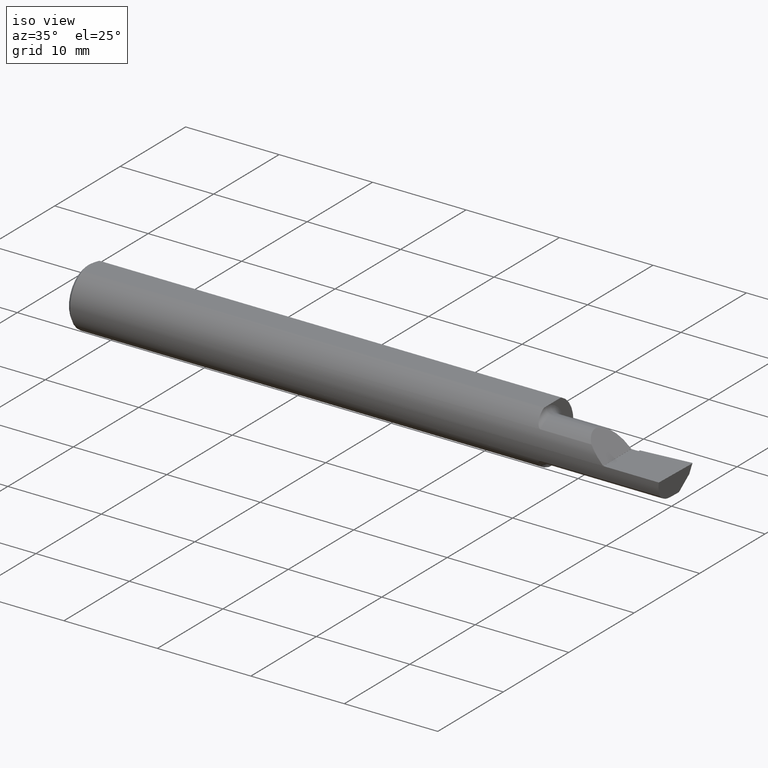
[diagram: clean part render]
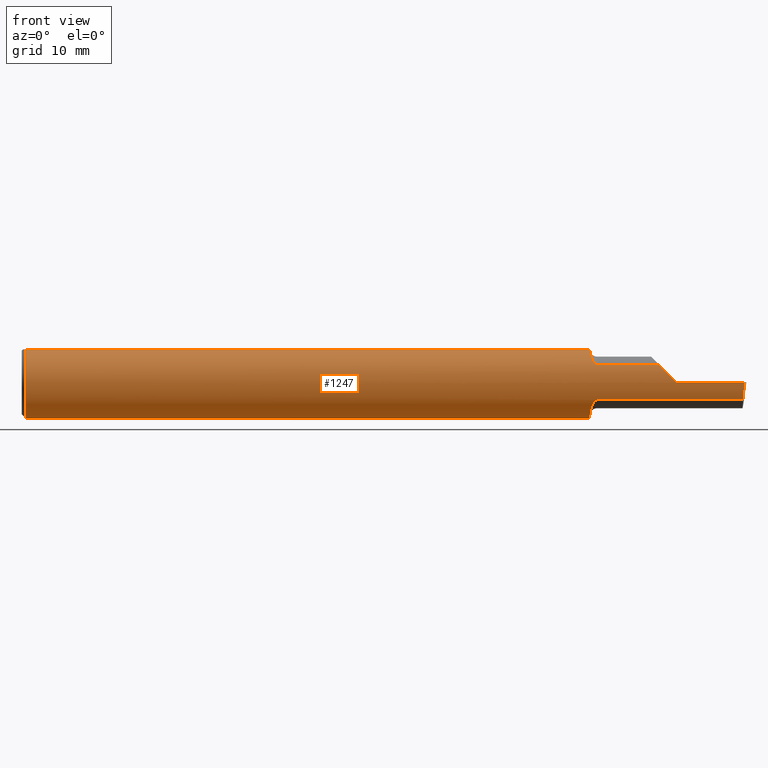
[diagram: tour spotlight — one face highlighted and labeled with its STEP entity id]
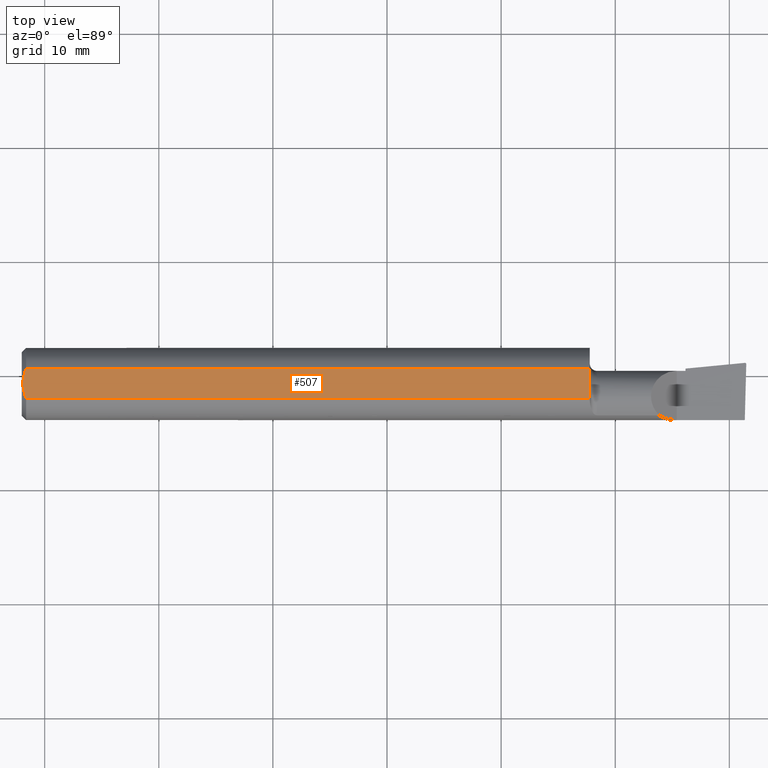
[diagram: tour spotlight — one face highlighted and labeled with its STEP entity id]
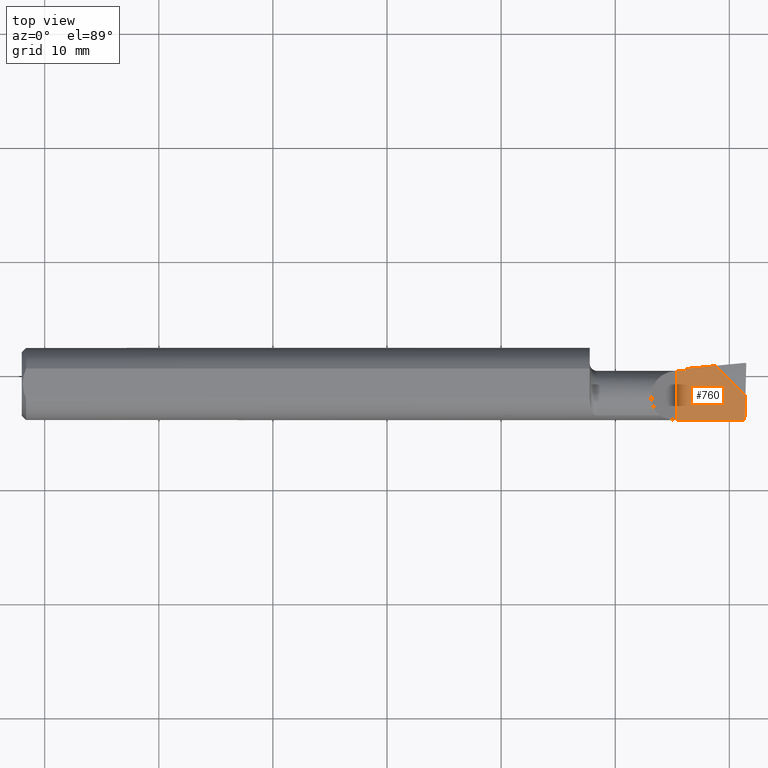
[diagram: tour spotlight — one face highlighted and labeled with its STEP entity id]
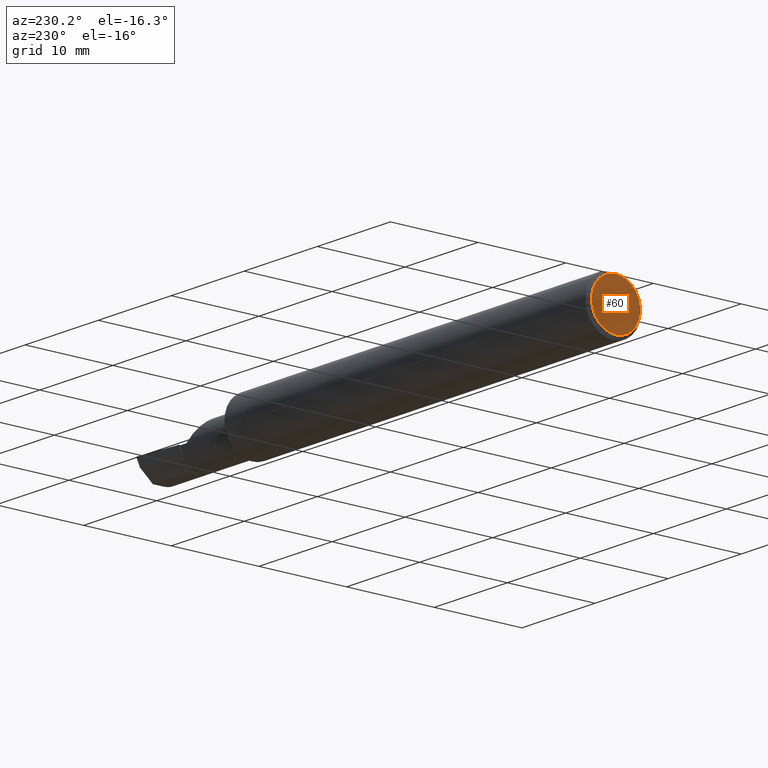
[diagram: tour spotlight — one face highlighted and labeled with its STEP entity id]
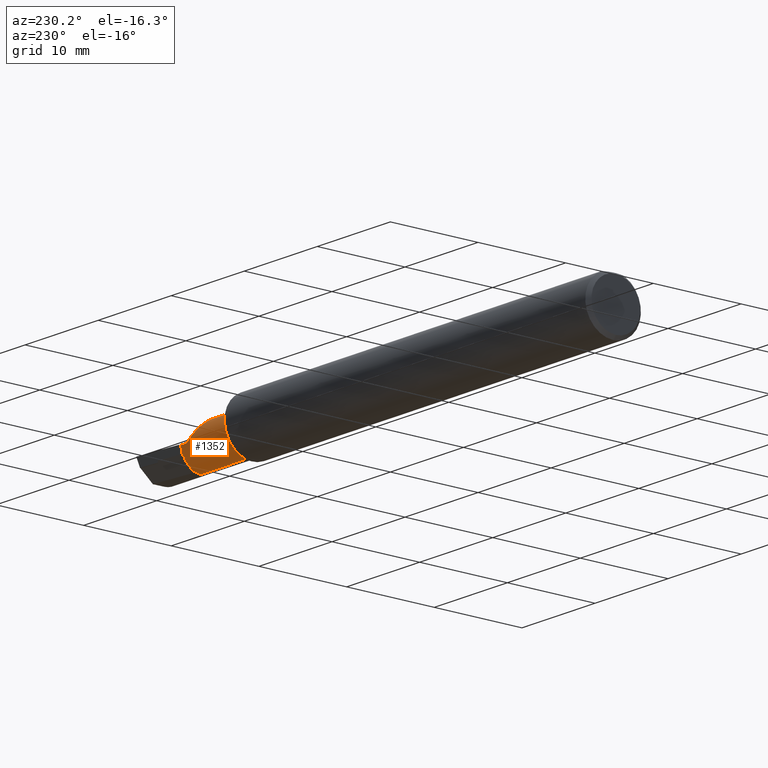
[diagram: tour spotlight — one face highlighted and labeled with its STEP entity id]
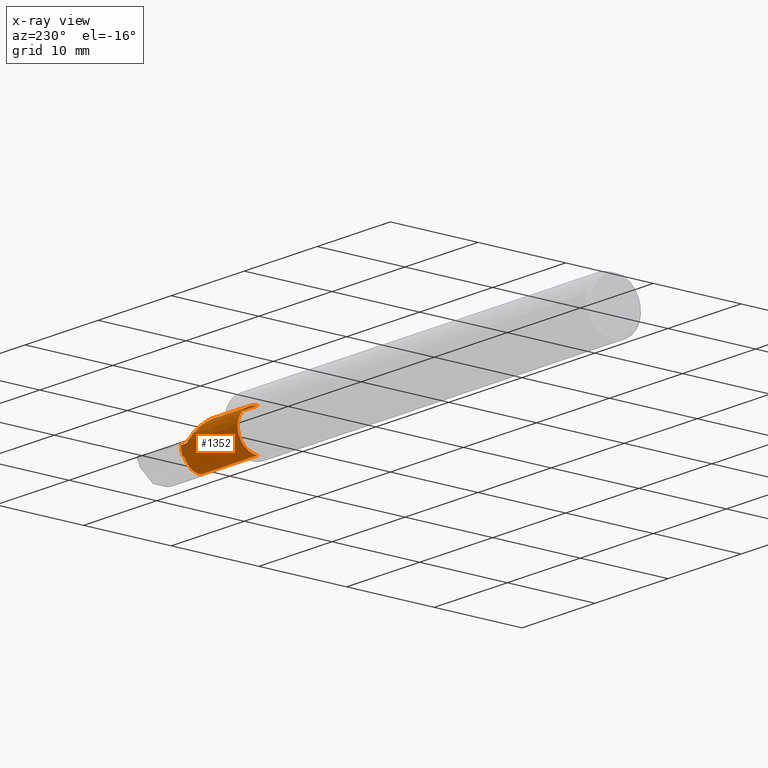
[diagram: x-ray of the same camera — body ghosted, this tour face saturated]
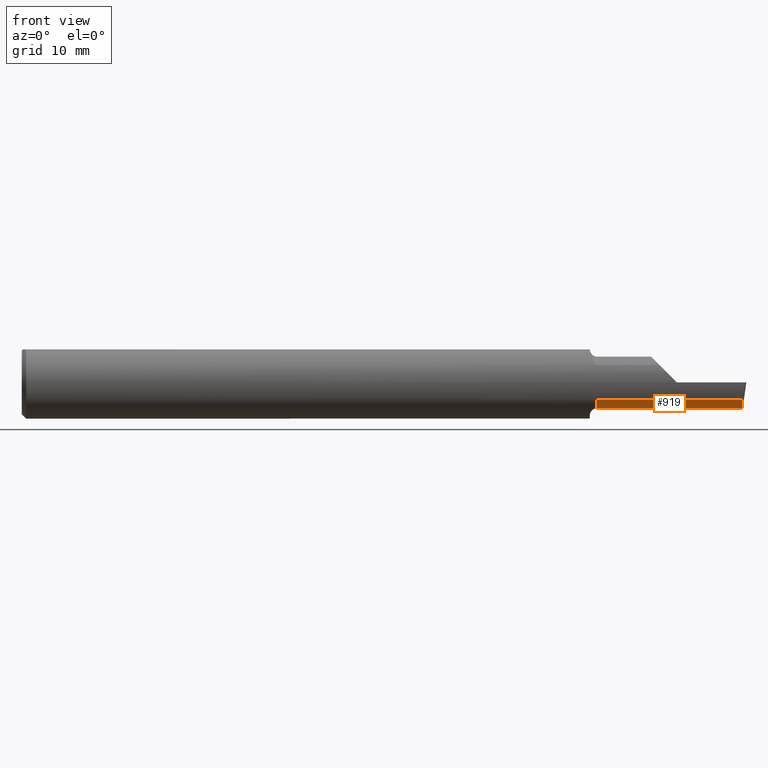
[diagram: tour spotlight — one face highlighted and labeled with its STEP entity id]
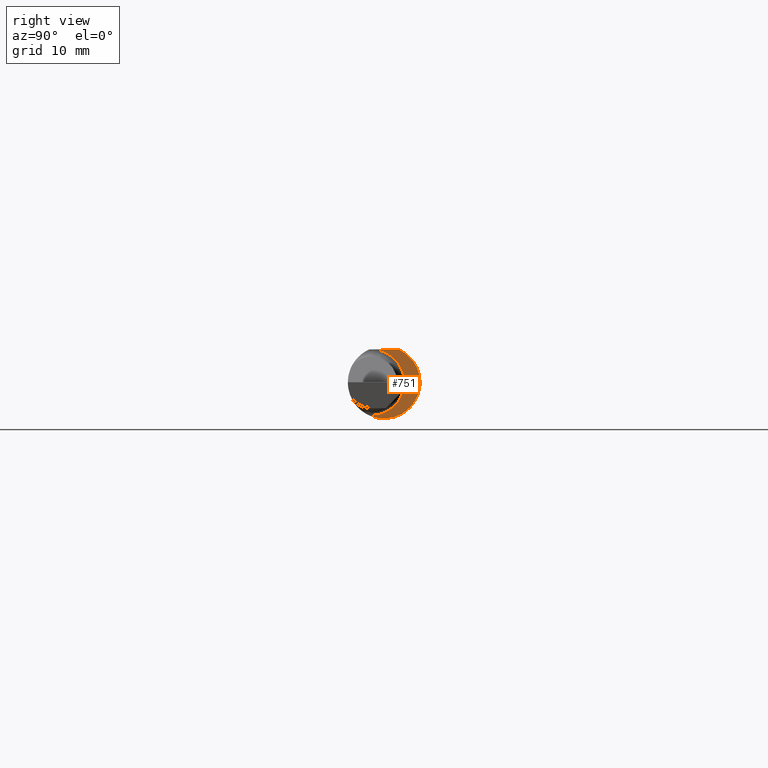
[diagram: tour spotlight — one face highlighted and labeled with its STEP entity id]
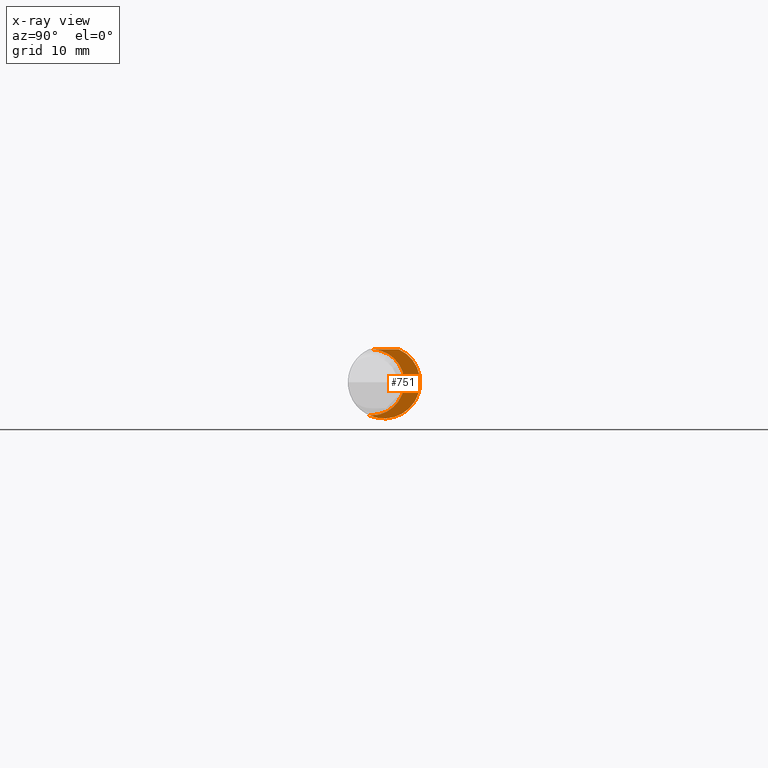
[diagram: x-ray of the same camera — body ghosted, this tour face saturated]
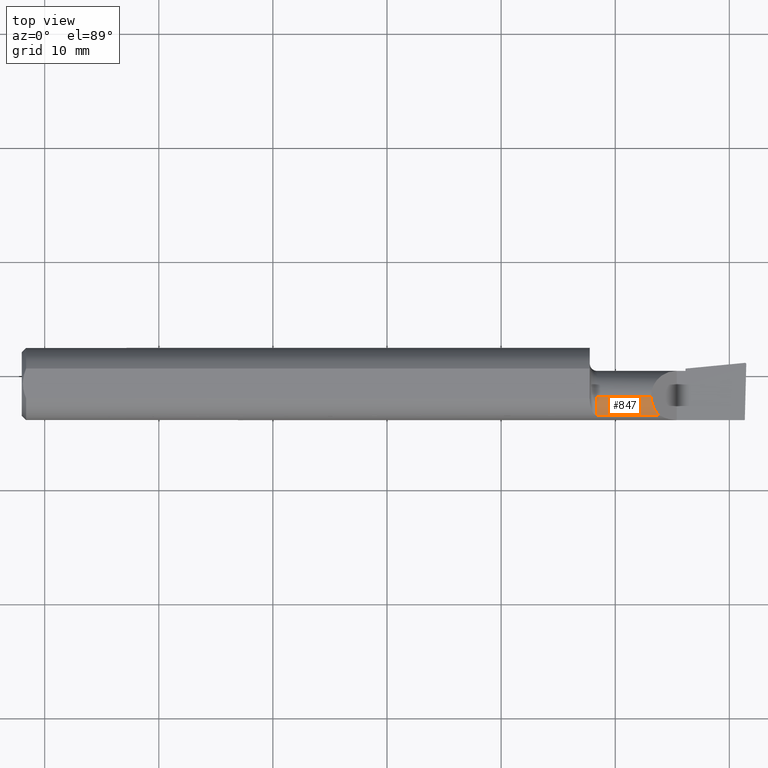
[diagram: tour spotlight — one face highlighted and labeled with its STEP entity id]
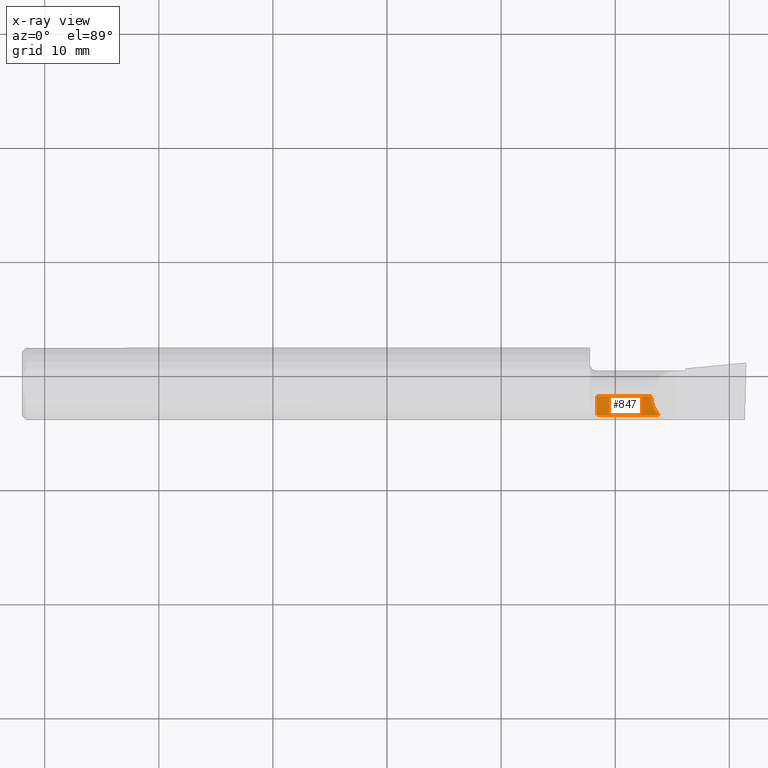
[diagram: x-ray of the same camera — body ghosted, this tour face saturated]
A machine part: a face-by-face anatomy tour. The part has 39 B-rep faces; the first image is the clean iso view, then the 8 largest visible faces are spotlighted one at a time (largest first), each with its STEP entity span.

Face 1 — front view, entity #1247. In plain terms, the highlighted cylindrical surface (edge-blend (fillet) strip) has radius 3.1712 mm, axis along (-1, -0, -0).
Definition (entity closure, byte-faithful):
#11 = CARTESIAN_POINT ( 'NONE',  ( 2.489794518800235057, -0.1195698034294429418, -0.04170749830123405416 ) ) ;
#13 = CIRCLE ( 'NONE', #794, 0.1248500000000000026 ) ;
#16 = CARTESIAN_POINT ( 'NONE',  ( 2.125000000000000000, -0.1093425883694413014, -0.06026376082415466767 ) ) ;
#20 = FACE_OUTER_BOUND ( 'NONE', #725, .T. ) ;
#21 = VECTOR ( 'NONE', #758, 39.37007874015748143 ) ;
#28 = DIRECTION ( 'NONE',  ( 1.000000000000000000, 0.000000000000000000, 0.000000000000000000 ) ) ;
#32 = ORIENTED_EDGE ( 'NONE', *, *, #945, .F. ) ;
#41 = CARTESIAN_POINT ( 'NONE',  ( 1.960000000000000187, 0.05124158467494929065, 0.1138500000000000068 ) ) ;
#49 = CARTESIAN_POINT ( 'NONE',  ( 1.968371954461044515, -0.09675137270842945614, -0.07920056856679651147 ) ) ;
#57 = CARTESIAN_POINT ( 'NONE',  ( 1.977410496273542151, -0.1069869057687729830, -0.06437073033037428449 ) ) ;
#62 = AXIS2_PLACEMENT_3D ( 'NONE', #391, #1325, #132 ) ;
#65 = DIRECTION ( 'NONE',  ( 1.000000000000000000, -0.000000000000000000, -0.000000000000000000 ) ) ;
#102 = VECTOR ( 'NONE', #1413, 39.37007874015748143 ) ;
#115 = CARTESIAN_POINT ( 'NONE',  ( 0.01499999999999915637, 0.000000000000000000, -0.1248500000000000026 ) ) ;
#132 = DIRECTION ( 'NONE',  ( 0.000000000000000000, 0.000000000000000000, -1.000000000000000000 ) ) ;
#148 = ORIENTED_EDGE ( 'NONE', *, *, #288, .F. ) ;
#149 = DIRECTION ( 'NONE',  ( 0.000000000000000000, 0.000000000000000000, 1.000000000000000000 ) ) ;
#158 = CARTESIAN_POINT ( 'NONE',  ( 1.960000000000000409, -0.05816623466208104692, -0.1107165568113169657 ) ) ;
#171 =( BOUNDED_CURVE ( )  B_SPLINE_CURVE ( 3, ( #892, #523, #314, #1353 ),
 .UNSPECIFIED., .F., .F. ) 
 B_SPLINE_CURVE_WITH_KNOTS ( ( 4, 4 ),
 ( 4.715192348093415475, 5.216111826723994760 ),
 .UNSPECIFIED. ) 
 CURVE ( )  GEOMETRIC_REPRESENTATION_ITEM ( )  RATIONAL_B_SPLINE_CURVE ( ( 1.000000000000000000, 0.9791990519953637229, 0.9791990519953637229, 1.000000000000000000 ) ) 
 REPRESENTATION_ITEM ( '' )  );
#181 = CARTESIAN_POINT ( 'NONE',  ( 2.200086239175845559, -0.1093425883694413292, 0.06026376082415463298 ) ) ;
#183 = CARTESIAN_POINT ( 'NONE',  ( 1.972660015980653769, -0.1027612295985233792, -0.07098704890307021287 ) ) ;
#204 = CARTESIAN_POINT ( 'NONE',  ( 1.961513270166814538, -0.07700069323836869484, 0.09928727876353367343 ) ) ;
#206 = CARTESIAN_POINT ( 'NONE',  ( 1.985000000000000098, -0.1093425883694413014, 0.06026376082415468155 ) ) ;
#209 = ORIENTED_EDGE ( 'NONE', *, *, #483, .T. ) ;
#256 = DIRECTION ( 'NONE',  ( -1.000000000000000000, -0.000000000000000000, -0.000000000000000000 ) ) ;
#263 = VERTEX_POINT ( 'NONE', #967 ) ;
#267 = EDGE_CURVE ( 'NONE', #674, #1455, #573, .T. ) ;
#288 = EDGE_CURVE ( 'NONE', #666, #441, #375, .T. ) ;
#290 = CARTESIAN_POINT ( 'NONE',  ( 2.500000000000000000, -0.05124158467494929065, 0.1138500000000000068 ) ) ;
#314 = CARTESIAN_POINT ( 'NONE',  ( 2.218537028253239285, -0.1195116721323033065, 0.04181297174676079642 ) ) ;
#318 = VERTEX_POINT ( 'NONE', #841 ) ;
#335 = VECTOR ( 'NONE', #848, 39.37007874015748143 ) ;
#349 = B_SPLINE_CURVE_WITH_KNOTS ( 'NONE', 3,
 ( #997, #158, #622, #402, #521, #1345, #49, #183, #531, #57, #852, #868, #418, #759 ),
 .UNSPECIFIED., .F., .F.,
 ( 4, 2, 2, 2, 2, 2, 4 ),
 ( 0.000000000000000000, 0.0005517145261831978400, 0.001103429052366395680, 0.001655143578549593628, 0.001931000841641192494, 0.002068929473186997565, 0.002206858104732802636 ),
 .UNSPECIFIED. ) ;
#357 = CARTESIAN_POINT ( 'NONE',  ( 1.972661867212402553, -0.1027603103061494882, 0.07098658663575843630 ) ) ;
#365 = VERTEX_POINT ( 'NONE', #753 ) ;
#369 = CIRCLE ( 'NONE', #1228, 0.1248500000000000026 ) ;
#372 = EDGE_CURVE ( 'NONE', #896, #1464, #171, .T. ) ;
#375 = LINE ( 'NONE', #16, #335 ) ;
#385 = ORIENTED_EDGE ( 'NONE', *, *, #372, .T. ) ;
#387 =( BOUNDED_CURVE ( )  B_SPLINE_CURVE ( 3, ( #1404, #11, #926, #709 ),
 .UNSPECIFIED., .F., .F. ) 
 B_SPLINE_CURVE_WITH_KNOTS ( ( 4, 4 ),
 ( 0.8554227114044700153, 1.359145557743775656 ),
 .UNSPECIFIED. ) 
 CURVE ( )  GEOMETRIC_REPRESENTATION_ITEM ( )  RATIONAL_B_SPLINE_CURVE ( ( 1.000000000000000000, 0.9789668132830409153, 0.9789668132830409153, 1.000000000000000000 ) ) 
 REPRESENTATION_ITEM ( '' )  );
#391 = CARTESIAN_POINT ( 'NONE',  ( 0.01499999999999915637, 0.000000000000000000, 0.000000000000000000 ) ) ;
#402 = CARTESIAN_POINT ( 'NONE',  ( 1.961938239095210701, -0.07637198179816161170, -0.09902894417965883711 ) ) ;
#403 = CARTESIAN_POINT ( 'NONE',  ( 2.260000000000000231, 0.000000000000000000, 0.000000000000000000 ) ) ;
#411 = DIRECTION ( 'NONE',  ( -1.000000000000000000, -0.000000000000000000, -0.000000000000000000 ) ) ;
#415 = ORIENTED_EDGE ( 'NONE', *, *, #820, .T. ) ;
#418 = CARTESIAN_POINT ( 'NONE',  ( 1.983134955130017252, -0.1093425883694447709, -0.06026376082415149660 ) ) ;
#431 = ORIENTED_EDGE ( 'NONE', *, *, #740, .F. ) ;
#441 = VERTEX_POINT ( 'NONE', #1226 ) ;
#456 = EDGE_CURVE ( 'NONE', #365, #896, #13, .T. ) ;
#466 = CARTESIAN_POINT ( 'NONE',  ( 1.960000000000000187, -0.05147485746864311623, 0.1137447209701746148 ) ) ;
#468 = CIRCLE ( 'NONE', #962, 0.1248500000000000026 ) ;
#483 = EDGE_CURVE ( 'NONE', #888, #263, #515, .T. ) ;
#486 = CARTESIAN_POINT ( 'NONE',  ( 2.125000000000000000, -0.1093425883694413014, 0.06026376082415468155 ) ) ;
#495 = ORIENTED_EDGE ( 'NONE', *, *, #1138, .T. ) ;
#505 = CARTESIAN_POINT ( 'NONE',  ( 0.01499999999999915637, 0.05124158467494929065, 0.1138500000000000068 ) ) ;
#510 = ORIENTED_EDGE ( 'NONE', *, *, #1215, .T. ) ;
#515 = LINE ( 'NONE', #290, #1066 ) ;
#521 = CARTESIAN_POINT ( 'NONE',  ( 1.963114859723588124, -0.08201250590250441785, -0.09440297353497605071 ) ) ;
#523 = CARTESIAN_POINT ( 'NONE',  ( 2.238932527582364607, -0.1247904493837344864, 0.02141747241763547471 ) ) ;
#529 = CARTESIAN_POINT ( 'NONE',  ( 1.983123630933981252, -0.1093425883694413153, 0.06026376082415468849 ) ) ;
#531 = CARTESIAN_POINT ( 'NONE',  ( 1.974283923201366919, -0.1046119976162258325, -0.06821230220210328099 ) ) ;
#544 = VERTEX_POINT ( 'NONE', #206 ) ;
#545 = CARTESIAN_POINT ( 'NONE',  ( 1.974262696791653671, -0.1045943557623048581, 0.06824036999240271073 ) ) ;
#551 = VERTEX_POINT ( 'NONE', #466 ) ;
#573 = CIRCLE ( 'NONE', #62, 0.1248500000000000026 ) ;
#598 = CARTESIAN_POINT ( 'NONE',  ( 2.500000000000000000, 0.05124158467494929065, 0.1138500000000000068 ) ) ;
#605 = CARTESIAN_POINT ( 'NONE',  ( 2.500000000000000000, 0.000000000000000000, 0.000000000000000000 ) ) ;
#622 = CARTESIAN_POINT ( 'NONE',  ( 1.960388743662555333, -0.06447589190997099484, -0.1071553580159688435 ) ) ;
#630 = DIRECTION ( 'NONE',  ( -1.000000000000000000, -0.000000000000000000, -0.000000000000000000 ) ) ;
#642 = DIRECTION ( 'NONE',  ( 0.000000000000000000, 0.000000000000000000, -1.000000000000000000 ) ) ;
#654 = DIRECTION ( 'NONE',  ( 0.000000000000000000, 0.000000000000000000, 1.000000000000000000 ) ) ;
#666 = VERTEX_POINT ( 'NONE', #691 ) ;
#667 = CARTESIAN_POINT ( 'NONE',  ( 1.968415758364236989, -0.09681973434311109961, 0.07911054902715594639 ) ) ;
#674 = VERTEX_POINT ( 'NONE', #115 ) ;
#691 = CARTESIAN_POINT ( 'NONE',  ( 2.487785916505024453, -0.1093425883694413014, -0.06026376082415470237 ) ) ;
#696 = LINE ( 'NONE', #598, #931 ) ;
#697 = DIRECTION ( 'NONE',  ( 0.000000000000000000, 0.000000000000000000, -1.000000000000000000 ) ) ;
#709 = CARTESIAN_POINT ( 'NONE',  ( 2.494776250492609648, -0.1248499999999999610, -1.707404996040164512E-17 ) ) ;
#720 = EDGE_CURVE ( 'NONE', #544, #1464, #1084, .T. ) ;
#725 = EDGE_LOOP ( 'NONE', ( #148, #495, #1301, #992, #385, #1108, #1154, #431, #209, #415, #755, #510, #32, #918 ) ) ;
#734 = AXIS2_PLACEMENT_3D ( 'NONE', #605, #256, #149 ) ;
#740 = EDGE_CURVE ( 'NONE', #888, #551, #369, .T. ) ;
#750 = CARTESIAN_POINT ( 'NONE',  ( 2.500000000000000000, -0.1248500000000000026, -3.414809992080329023E-17 ) ) ;
#753 = CARTESIAN_POINT ( 'NONE',  ( 2.260000000000000231, -0.1248500000000000026, -3.414809992080329023E-17 ) ) ;
#755 = ORIENTED_EDGE ( 'NONE', *, *, #267, .T. ) ;
#758 = DIRECTION ( 'NONE',  ( -1.000000000000000000, -0.000000000000000000, -0.000000000000000000 ) ) ;
#759 = CARTESIAN_POINT ( 'NONE',  ( 1.985000000000000098, -0.1093425883694413014, -0.06026376082415466767 ) ) ;
#794 = AXIS2_PLACEMENT_3D ( 'NONE', #403, #630, #654 ) ;
#819 = CARTESIAN_POINT ( 'NONE',  ( 1.959999999999999298, -0.06483863215424713611, 0.1076969818635402920 ) ) ;
#820 = EDGE_CURVE ( 'NONE', #263, #674, #975, .T. ) ;
#823 = CARTESIAN_POINT ( 'NONE',  ( 1.960000000000000187, 0.000000000000000000, 0.000000000000000000 ) ) ;
#835 = VERTEX_POINT ( 'NONE', #1120 ) ;
#841 = CARTESIAN_POINT ( 'NONE',  ( 1.960000000000000187, -0.05147485746864311623, -0.1137447209701746148 ) ) ;
#848 = DIRECTION ( 'NONE',  ( -1.000000000000000000, -0.000000000000000000, -0.000000000000000000 ) ) ;
#852 = CARTESIAN_POINT ( 'NONE',  ( 1.978582821436010386, -0.1077233320814301870, -0.06312374966870223925 ) ) ;
#860 = CARTESIAN_POINT ( 'NONE',  ( 1.960000000000000187, 0.000000000000000000, 0.000000000000000000 ) ) ;
#868 = CARTESIAN_POINT ( 'NONE',  ( 1.981405924813790520, -0.1089009754209322584, -0.06106964548229006085 ) ) ;
#876 = DIRECTION ( 'NONE',  ( 0.000000000000000000, 0.000000000000000000, -1.000000000000000000 ) ) ;
#881 = CARTESIAN_POINT ( 'NONE',  ( 1.977410591121773642, -0.1069877332768023742, 0.06436962514882095532 ) ) ;
#888 = VERTEX_POINT ( 'NONE', #980 ) ;
#892 = CARTESIAN_POINT ( 'NONE',  ( 2.260000000000000231, -0.1248495094103296982, 0.0003499999999999383053 ) ) ;
#894 = EDGE_CURVE ( 'NONE', #318, #441, #349, .T. ) ;
#896 = VERTEX_POINT ( 'NONE', #1225 ) ;
#918 = ORIENTED_EDGE ( 'NONE', *, *, #894, .T. ) ;
#926 = CARTESIAN_POINT ( 'NONE',  ( 2.492174692773018396, -0.1248499999999999888, -0.02118798732072202373 ) ) ;
#931 = VECTOR ( 'NONE', #1316, 39.37007874015748143 ) ;
#945 = EDGE_CURVE ( 'NONE', #318, #1435, #468, .T. ) ;
#962 = AXIS2_PLACEMENT_3D ( 'NONE', #860, #1330, #642 ) ;
#967 = CARTESIAN_POINT ( 'NONE',  ( 0.01499999999999915637, -0.05124158467494929065, 0.1138500000000000068 ) ) ;
#975 = CIRCLE ( 'NONE', #1178, 0.1248500000000000026 ) ;
#980 = CARTESIAN_POINT ( 'NONE',  ( 1.960000000000000187, -0.05124158467494929065, 0.1138500000000000068 ) ) ;
#992 = ORIENTED_EDGE ( 'NONE', *, *, #456, .T. ) ;
#995 = CARTESIAN_POINT ( 'NONE',  ( 1.978569800726603933, -0.1077176293511043076, 0.06313366163023678701 ) ) ;
#997 = CARTESIAN_POINT ( 'NONE',  ( 1.960000000000000187, -0.05147485746864311623, -0.1137447209701746148 ) ) ;
#1066 = VECTOR ( 'NONE', #411, 39.37007874015748143 ) ;
#1084 = LINE ( 'NONE', #486, #102 ) ;
#1098 = CARTESIAN_POINT ( 'NONE',  ( 0.01499999999999915637, 0.000000000000000000, 0.000000000000000000 ) ) ;
#1108 = ORIENTED_EDGE ( 'NONE', *, *, #720, .F. ) ;
#1110 = CARTESIAN_POINT ( 'NONE',  ( 1.985000000000000098, -0.1093425883694413014, 0.06026376082415468155 ) ) ;
#1120 = CARTESIAN_POINT ( 'NONE',  ( 2.494776250492609648, -0.1248499999999999610, -1.707404996040164512E-17 ) ) ;
#1126 = CARTESIAN_POINT ( 'NONE',  ( 1.960000000000000187, -0.05147485746864311623, 0.1137447209701746148 ) ) ;
#1138 = EDGE_CURVE ( 'NONE', #666, #835, #387, .T. ) ;
#1154 = ORIENTED_EDGE ( 'NONE', *, *, #1468, .T. ) ;
#1164 = B_SPLINE_CURVE_WITH_KNOTS ( 'NONE', 3,
 ( #1110, #529, #1457, #995, #881, #545, #357, #667, #1358, #204, #819, #1126 ),
 .UNSPECIFIED., .F., .F.,
 ( 4, 2, 2, 2, 2, 4 ),
 ( 0.000000000000000000, 0.0001399554655829060611, 0.0002799109311658121223, 0.0005598218623316239193, 0.001119643724663256078, 0.002239287449326519963 ),
 .UNSPECIFIED. ) ;
#1178 = AXIS2_PLACEMENT_3D ( 'NONE', #1098, #65, #876 ) ;
#1215 = EDGE_CURVE ( 'NONE', #1455, #1435, #696, .T. ) ;
#1225 = CARTESIAN_POINT ( 'NONE',  ( 2.260000000000000231, -0.1248495094103296982, 0.0003499999999999383053 ) ) ;
#1226 = CARTESIAN_POINT ( 'NONE',  ( 1.985000000000000098, -0.1093425883694413014, -0.06026376082415466767 ) ) ;
#1228 = AXIS2_PLACEMENT_3D ( 'NONE', #823, #28, #697 ) ;
#1247 = ADVANCED_FACE ( 'NONE', ( #20 ), #1308, .T. ) ;
#1301 = ORIENTED_EDGE ( 'NONE', *, *, #1448, .T. ) ;
#1308 = CYLINDRICAL_SURFACE ( 'NONE', #734, 0.1248500000000000026 ) ;
#1316 = DIRECTION ( 'NONE',  ( 1.000000000000000000, 0.000000000000000000, 0.000000000000000000 ) ) ;
#1325 = DIRECTION ( 'NONE',  ( 1.000000000000000000, -0.000000000000000000, -0.000000000000000000 ) ) ;
#1330 = DIRECTION ( 'NONE',  ( 1.000000000000000000, 0.000000000000000000, 0.000000000000000000 ) ) ;
#1336 = LINE ( 'NONE', #750, #21 ) ;
#1345 = CARTESIAN_POINT ( 'NONE',  ( 1.966361277442388644, -0.09219001326833793641, -0.08449244930902040374 ) ) ;
#1353 = CARTESIAN_POINT ( 'NONE',  ( 2.200086239175845559, -0.1093425883694413292, 0.06026376082415463298 ) ) ;
#1358 = CARTESIAN_POINT ( 'NONE',  ( 1.966359086621634500, -0.09217855052086350309, 0.08450162317811933665 ) ) ;
#1404 = CARTESIAN_POINT ( 'NONE',  ( 2.487785916505024453, -0.1093425883694413014, -0.06026376082415470237 ) ) ;
#1413 = DIRECTION ( 'NONE',  ( 1.000000000000000000, 0.000000000000000000, 0.000000000000000000 ) ) ;
#1435 = VERTEX_POINT ( 'NONE', #41 ) ;
#1448 = EDGE_CURVE ( 'NONE', #835, #365, #1336, .T. ) ;
#1455 = VERTEX_POINT ( 'NONE', #505 ) ;
#1457 = CARTESIAN_POINT ( 'NONE',  ( 1.981414604163055815, -0.1089048667610733045, 0.06106289298433214413 ) ) ;
#1464 = VERTEX_POINT ( 'NONE', #181 ) ;
#1468 = EDGE_CURVE ( 'NONE', #544, #551, #1164, .T. ) ;

Face 2 — top view, entity #507. In plain terms, the highlighted planar face has unit normal (0, 0, -1).
Definition (entity closure, byte-faithful):
#41 = CARTESIAN_POINT ( 'NONE',  ( 1.960000000000000187, 0.05124158467494929065, 0.1138500000000000068 ) ) ;
#93 = DIRECTION ( 'NONE',  ( -0.000000000000000000, 0.000000000000000000, -1.000000000000000000 ) ) ;
#108 = CARTESIAN_POINT ( 'NONE',  ( 0.003999999999999695639, -0.008848600531297712291, 0.1138500000000000068 ) ) ;
#120 = EDGE_CURVE ( 'NONE', #664, #263, #1184, .T. ) ;
#124 = CARTESIAN_POINT ( 'NONE',  ( 0.005080301127455556266, -0.01778481300359938122, 0.1138500000000000206 ) ) ;
#175 = EDGE_CURVE ( 'NONE', #1096, #479, #446, .T. ) ;
#227 = CARTESIAN_POINT ( 'NONE',  ( 0.003999999999982063043, -1.276289997341778245E-15, 0.1138500000000000068 ) ) ;
#263 = VERTEX_POINT ( 'NONE', #967 ) ;
#284 = CARTESIAN_POINT ( 'NONE',  ( 1.960000000000000187, 0.1000000000000000056, 0.1138500000000000068 ) ) ;
#290 = CARTESIAN_POINT ( 'NONE',  ( 2.500000000000000000, -0.05124158467494929065, 0.1138500000000000068 ) ) ;
#333 = AXIS2_PLACEMENT_3D ( 'NONE', #1045, #93, #801 ) ;
#340 = CARTESIAN_POINT ( 'NONE',  ( 0.003999999999982063043, -1.276289997341778245E-15, 0.1138500000000000068 ) ) ;
#399 = EDGE_CURVE ( 'NONE', #479, #888, #1114, .T. ) ;
#411 = DIRECTION ( 'NONE',  ( -1.000000000000000000, -0.000000000000000000, -0.000000000000000000 ) ) ;
#436 = PLANE ( 'NONE',  #333 ) ;
#446 = LINE ( 'NONE', #796, #988 ) ;
#473 = CARTESIAN_POINT ( 'NONE',  ( 0.01499999999999915637, 0.05124158467494929065, 0.1138500000000000068 ) ) ;
#479 = VERTEX_POINT ( 'NONE', #974 ) ;
#483 = EDGE_CURVE ( 'NONE', #888, #263, #515, .T. ) ;
#492 = CARTESIAN_POINT ( 'NONE',  ( 0.003999999999999199508, 0.008800694614867342336, 0.1138500000000000068 ) ) ;
#500 = CARTESIAN_POINT ( 'NONE',  ( 0.008866562462786909196, 0.03466860267591459488, 0.1138500000000000206 ) ) ;
#505 = CARTESIAN_POINT ( 'NONE',  ( 0.01499999999999915637, 0.05124158467494929065, 0.1138500000000000068 ) ) ;
#507 = ADVANCED_FACE ( 'NONE', ( #900 ), #436, .F. ) ;
#515 = LINE ( 'NONE', #290, #1066 ) ;
#534 = ORIENTED_EDGE ( 'NONE', *, *, #483, .F. ) ;
#588 = CARTESIAN_POINT ( 'NONE',  ( 0.01499999999999915637, -0.05124158467494929065, 0.1138500000000000068 ) ) ;
#598 = CARTESIAN_POINT ( 'NONE',  ( 2.500000000000000000, 0.05124158467494929065, 0.1138500000000000068 ) ) ;
#664 = VERTEX_POINT ( 'NONE', #227 ) ;
#696 = LINE ( 'NONE', #598, #931 ) ;
#732 = EDGE_CURVE ( 'NONE', #1455, #664, #1111, .T. ) ;
#796 = CARTESIAN_POINT ( 'NONE',  ( 1.960000000000000187, 0.1000000000000000056, 0.1138500000000000068 ) ) ;
#799 = CARTESIAN_POINT ( 'NONE',  ( 1.960000000000000187, -0.03800384741902852748, 0.1138500000000000068 ) ) ;
#801 = DIRECTION ( 'NONE',  ( -1.000000000000000000, 0.000000000000000000, 0.000000000000000000 ) ) ;
#806 = CARTESIAN_POINT ( 'NONE',  ( 1.960000000000000187, 0.1000000000000000056, 0.1138500000000000068 ) ) ;
#831 = CARTESIAN_POINT ( 'NONE',  ( 0.003999999999982063043, -1.276289997341778245E-15, 0.1138500000000000068 ) ) ;
#839 = CARTESIAN_POINT ( 'NONE',  ( 0.01167190377471788269, 0.04313268608482605931, 0.1138500000000000068 ) ) ;
#886 = DIRECTION ( 'NONE',  ( 0.000000000000000000, -1.000000000000000000, 0.000000000000000000 ) ) ;
#888 = VERTEX_POINT ( 'NONE', #980 ) ;
#900 = FACE_OUTER_BOUND ( 'NONE', #1147, .T. ) ;
#931 = VECTOR ( 'NONE', #1316, 39.37007874015748143 ) ;
#967 = CARTESIAN_POINT ( 'NONE',  ( 0.01499999999999915637, -0.05124158467494929065, 0.1138500000000000068 ) ) ;
#973 = EDGE_CURVE ( 'NONE', #1435, #1096, #1260, .T. ) ;
#974 = CARTESIAN_POINT ( 'NONE',  ( 1.960000000000000187, -0.04969615258097147270, 0.1138500000000000068 ) ) ;
#980 = CARTESIAN_POINT ( 'NONE',  ( 1.960000000000000187, -0.05124158467494929065, 0.1138500000000000068 ) ) ;
#988 = VECTOR ( 'NONE', #1270, 39.37007874015748143 ) ;
#1039 = VECTOR ( 'NONE', #886, 39.37007874015748143 ) ;
#1045 = CARTESIAN_POINT ( 'NONE',  ( 0.000000000000000000, 0.1000000000000000056, 0.1138500000000000068 ) ) ;
#1066 = VECTOR ( 'NONE', #411, 39.37007874015748143 ) ;
#1096 = VERTEX_POINT ( 'NONE', #799 ) ;
#1111 = B_SPLINE_CURVE_WITH_KNOTS ( 'NONE', 3,
 ( #473, #839, #500, #1179, #492, #831 ),
 .UNSPECIFIED., .F., .F.,
 ( 4, 2, 4 ),
 ( 0.001209797888329806285, 0.001876628042345594889, 0.002543458196361383494 ),
 .UNSPECIFIED. ) ;
#1114 = LINE ( 'NONE', #284, #1039 ) ;
#1141 = CARTESIAN_POINT ( 'NONE',  ( 0.01167347033176661768, -0.04313650299737419730, 0.1138500000000000068 ) ) ;
#1147 = EDGE_LOOP ( 'NONE', ( #1198, #1191, #1303, #1504, #534, #1494, #1403 ) ) ;
#1179 = CARTESIAN_POINT ( 'NONE',  ( 0.005030588787081020918, 0.01748826716933453429, 0.1138499999999999790 ) ) ;
#1184 = B_SPLINE_CURVE_WITH_KNOTS ( 'NONE', 3,
 ( #340, #108, #124, #1283, #1141, #588 ),
 .UNSPECIFIED., .F., .F.,
 ( 4, 2, 4 ),
 ( 0.002543458196361383494, 0.003213918189955208317, 0.003884378183549033140 ),
 .UNSPECIFIED. ) ;
#1191 = ORIENTED_EDGE ( 'NONE', *, *, #1215, .F. ) ;
#1198 = ORIENTED_EDGE ( 'NONE', *, *, #973, .F. ) ;
#1215 = EDGE_CURVE ( 'NONE', #1455, #1435, #696, .T. ) ;
#1251 = DIRECTION ( 'NONE',  ( 0.000000000000000000, -1.000000000000000000, 0.000000000000000000 ) ) ;
#1260 = LINE ( 'NONE', #806, #1323 ) ;
#1270 = DIRECTION ( 'NONE',  ( 0.000000000000000000, -1.000000000000000000, 0.000000000000000000 ) ) ;
#1283 = CARTESIAN_POINT ( 'NONE',  ( 0.008925039223039428135, -0.03485448893270377130, 0.1138499999999999790 ) ) ;
#1303 = ORIENTED_EDGE ( 'NONE', *, *, #732, .T. ) ;
#1316 = DIRECTION ( 'NONE',  ( 1.000000000000000000, 0.000000000000000000, 0.000000000000000000 ) ) ;
#1323 = VECTOR ( 'NONE', #1251, 39.37007874015748143 ) ;
#1403 = ORIENTED_EDGE ( 'NONE', *, *, #175, .F. ) ;
#1435 = VERTEX_POINT ( 'NONE', #41 ) ;
#1455 = VERTEX_POINT ( 'NONE', #505 ) ;
#1494 = ORIENTED_EDGE ( 'NONE', *, *, #399, .F. ) ;
#1504 = ORIENTED_EDGE ( 'NONE', *, *, #120, .T. ) ;

Face 3 — top view, entity #760. In plain terms, the highlighted planar face has unit normal (0, 0, -1).
Definition (entity closure, byte-faithful):
#5 = CARTESIAN_POINT ( 'NONE',  ( 2.260000000000000231, 0.1499999999999999667, -3.414809992080329023E-17 ) ) ;
#21 = VECTOR ( 'NONE', #758, 39.37007874015748143 ) ;
#96 = EDGE_LOOP ( 'NONE', ( #1026, #865, #830, #969, #286, #856, #465 ) ) ;
#119 = DIRECTION ( 'NONE',  ( 1.000000000000000000, 0.000000000000000000, 0.000000000000000000 ) ) ;
#131 = CARTESIAN_POINT ( 'NONE',  ( 2.395141843845649099, 0.06305330794814877071, 0.000000000000000000 ) ) ;
#135 = DIRECTION ( 'NONE',  ( -0.000000000000000000, 0.000000000000000000, -1.000000000000000000 ) ) ;
#201 = VERTEX_POINT ( 'NONE', #1085 ) ;
#225 = CARTESIAN_POINT ( 'NONE',  ( 2.500000000000000444, -0.04180484820620095771, 0.000000000000000000 ) ) ;
#235 = CARTESIAN_POINT ( 'NONE',  ( 1.960000000000000187, 0.04514999999999999569, -3.414809992080329023E-17 ) ) ;
#286 = ORIENTED_EDGE ( 'NONE', *, *, #1265, .F. ) ;
#316 = EDGE_CURVE ( 'NONE', #201, #572, #487, .T. ) ;
#319 = CARTESIAN_POINT ( 'NONE',  ( 2.269536573633624155, 0.05095889603083809255, -3.414809992080329023E-17 ) ) ;
#327 = DIRECTION ( 'NONE',  ( -0.9953961983671786307, -0.09584575252022480008, 0.000000000000000000 ) ) ;
#337 = LINE ( 'NONE', #225, #1004 ) ;
#365 = VERTEX_POINT ( 'NONE', #753 ) ;
#366 = DIRECTION ( 'NONE',  ( -0.000000000000000000, 1.000000000000000000, -0.000000000000000000 ) ) ;
#389 = DIRECTION ( 'NONE',  ( -1.000000000000000000, 0.000000000000000000, 0.000000000000000000 ) ) ;
#443 = VECTOR ( 'NONE', #366, 39.37007874015748143 ) ;
#465 = ORIENTED_EDGE ( 'NONE', *, *, #1448, .F. ) ;
#487 = LINE ( 'NONE', #1420, #1190 ) ;
#548 = CARTESIAN_POINT ( 'NONE',  ( 2.501859157066409711, 0.1436191330677595301, -3.414809992080329023E-17 ) ) ;
#567 = DIRECTION ( 'NONE',  ( 0.02637339639455550319, 0.9996521614854917415, 0.000000000000000000 ) ) ;
#572 = VERTEX_POINT ( 'NONE', #792 ) ;
#585 = LINE ( 'NONE', #5, #443 ) ;
#606 = PLANE ( 'NONE',  #1370 ) ;
#621 = EDGE_CURVE ( 'NONE', #835, #773, #662, .T. ) ;
#662 = LINE ( 'NONE', #548, #1188 ) ;
#669 = DIRECTION ( 'NONE',  ( 0.7071067811865526798, -0.7071067811865422437, -0.000000000000000000 ) ) ;
#688 = VERTEX_POINT ( 'NONE', #131 ) ;
#710 = EDGE_CURVE ( 'NONE', #365, #812, #585, .T. ) ;
#750 = CARTESIAN_POINT ( 'NONE',  ( 2.500000000000000000, -0.1248500000000000026, -3.414809992080329023E-17 ) ) ;
#753 = CARTESIAN_POINT ( 'NONE',  ( 2.260000000000000231, -0.1248500000000000026, -3.414809992080329023E-17 ) ) ;
#758 = DIRECTION ( 'NONE',  ( -1.000000000000000000, -0.000000000000000000, -0.000000000000000000 ) ) ;
#760 = ADVANCED_FACE ( 'NONE', ( #948 ), #606, .F. ) ;
#773 = VERTEX_POINT ( 'NONE', #1069 ) ;
#792 = CARTESIAN_POINT ( 'NONE',  ( 2.290000000000000036, 0.05292929987851683477, -3.414809992080329023E-17 ) ) ;
#810 = VECTOR ( 'NONE', #119, 39.37007874015748143 ) ;
#812 = VERTEX_POINT ( 'NONE', #1425 ) ;
#814 = LINE ( 'NONE', #235, #810 ) ;
#830 = ORIENTED_EDGE ( 'NONE', *, *, #955, .T. ) ;
#835 = VERTEX_POINT ( 'NONE', #1120 ) ;
#856 = ORIENTED_EDGE ( 'NONE', *, *, #710, .F. ) ;
#865 = ORIENTED_EDGE ( 'NONE', *, *, #1081, .F. ) ;
#948 = FACE_OUTER_BOUND ( 'NONE', #96, .T. ) ;
#955 = EDGE_CURVE ( 'NONE', #688, #572, #1113, .T. ) ;
#969 = ORIENTED_EDGE ( 'NONE', *, *, #316, .F. ) ;
#1004 = VECTOR ( 'NONE', #669, 39.37007874015748854 ) ;
#1026 = ORIENTED_EDGE ( 'NONE', *, *, #621, .T. ) ;
#1069 = CARTESIAN_POINT ( 'NONE',  ( 2.497045151793799711, -0.03884999999999986381, 0.000000000000000000 ) ) ;
#1081 = EDGE_CURVE ( 'NONE', #688, #773, #337, .T. ) ;
#1085 = CARTESIAN_POINT ( 'NONE',  ( 2.290000000000000036, 0.04514999999999999569, -3.414809992080329023E-17 ) ) ;
#1113 = LINE ( 'NONE', #319, #1176 ) ;
#1120 = CARTESIAN_POINT ( 'NONE',  ( 2.494776250492609648, -0.1248499999999999610, -1.707404996040164512E-17 ) ) ;
#1176 = VECTOR ( 'NONE', #327, 39.37007874015748854 ) ;
#1186 = CARTESIAN_POINT ( 'NONE',  ( 2.260000000000000231, 0.1499999999999999667, -3.414809992080329023E-17 ) ) ;
#1188 = VECTOR ( 'NONE', #567, 39.37007874015748143 ) ;
#1190 = VECTOR ( 'NONE', #1415, 39.37007874015748143 ) ;
#1265 = EDGE_CURVE ( 'NONE', #812, #201, #814, .T. ) ;
#1336 = LINE ( 'NONE', #750, #21 ) ;
#1370 = AXIS2_PLACEMENT_3D ( 'NONE', #1186, #135, #389 ) ;
#1415 = DIRECTION ( 'NONE',  ( 0.000000000000000000, 1.000000000000000000, 0.000000000000000000 ) ) ;
#1420 = CARTESIAN_POINT ( 'NONE',  ( 2.290000000000000036, 0.1499999999999999667, -3.414809992080329023E-17 ) ) ;
#1425 = CARTESIAN_POINT ( 'NONE',  ( 2.260000000000000231, 0.04514999999999997488, -3.414809992080329023E-17 ) ) ;
#1448 = EDGE_CURVE ( 'NONE', #835, #365, #1336, .T. ) ;

Face 4 — auxiliary view, entity #60. In plain terms, the highlighted planar face has unit normal (1, 0, 0).
Definition (entity closure, byte-faithful):
#46 = ORIENTED_EDGE ( 'NONE', *, *, #965, .T. ) ;
#60 = ADVANCED_FACE ( 'NONE', ( #1146 ), #1508, .F. ) ;
#178 = EDGE_LOOP ( 'NONE', ( #180, #46 ) ) ;
#180 = ORIENTED_EDGE ( 'NONE', *, *, #392, .T. ) ;
#239 = CARTESIAN_POINT ( 'NONE',  ( 0.000000000000000000, 1.437123018799421600E-17, 0.1098500000000004473 ) ) ;
#392 = EDGE_CURVE ( 'NONE', #1142, #1501, #454, .T. ) ;
#394 = AXIS2_PLACEMENT_3D ( 'NONE', #575, #1129, #1143 ) ;
#428 = CARTESIAN_POINT ( 'NONE',  ( 0.000000000000000000, 0.000000000000000000, 0.000000000000000000 ) ) ;
#454 = CIRCLE ( 'NONE', #647, 0.1098500000000004473 ) ;
#504 = AXIS2_PLACEMENT_3D ( 'NONE', #903, #922, #1047 ) ;
#575 = CARTESIAN_POINT ( 'NONE',  ( 0.000000000000000000, 0.000000000000000000, 0.000000000000000000 ) ) ;
#647 = AXIS2_PLACEMENT_3D ( 'NONE', #428, #1359, #998 ) ;
#776 = CARTESIAN_POINT ( 'NONE',  ( 0.000000000000000000, 0.000000000000000000, -0.1098500000000004473 ) ) ;
#903 = CARTESIAN_POINT ( 'NONE',  ( 0.000000000000000000, 0.000000000000000000, 0.000000000000000000 ) ) ;
#922 = DIRECTION ( 'NONE',  ( 1.000000000000000000, 0.000000000000000000, 0.000000000000000000 ) ) ;
#925 = CIRCLE ( 'NONE', #394, 0.1098500000000004473 ) ;
#965 = EDGE_CURVE ( 'NONE', #1501, #1142, #925, .T. ) ;
#998 = DIRECTION ( 'NONE',  ( 0.000000000000000000, 0.000000000000000000, -1.000000000000000000 ) ) ;
#1047 = DIRECTION ( 'NONE',  ( 0.000000000000000000, 0.000000000000000000, -1.000000000000000000 ) ) ;
#1129 = DIRECTION ( 'NONE',  ( -1.000000000000000000, -0.000000000000000000, -0.000000000000000000 ) ) ;
#1142 = VERTEX_POINT ( 'NONE', #776 ) ;
#1143 = DIRECTION ( 'NONE',  ( 0.000000000000000000, 0.000000000000000000, -1.000000000000000000 ) ) ;
#1146 = FACE_OUTER_BOUND ( 'NONE', #178, .T. ) ;
#1359 = DIRECTION ( 'NONE',  ( -1.000000000000000000, -0.000000000000000000, -0.000000000000000000 ) ) ;
#1501 = VERTEX_POINT ( 'NONE', #239 ) ;
#1508 = PLANE ( 'NONE',  #504 ) ;

Face 5 — auxiliary view, entity #1352. An x-ray twin of the same camera follows (body ghosted, this face saturated) — the face is partly hidden behind the body. In plain terms, the highlighted cylindrical surface (edge-blend (fillet) strip) has radius 2.2606 mm, axis along (-1, -0, -0).
Definition (entity closure, byte-faithful):
#2 = AXIS2_PLACEMENT_3D ( 'NONE', #1366, #1489, #449 ) ;
#19 = VERTEX_POINT ( 'NONE', #355 ) ;
#47 = ORIENTED_EDGE ( 'NONE', *, *, #249, .T. ) ;
#81 = CARTESIAN_POINT ( 'NONE',  ( 1.985000000000000098, -0.04080726561575169498, 0.08896101634190878293 ) ) ;
#84 = CARTESIAN_POINT ( 'NONE',  ( 2.289293480241941126, -0.001989077639623209118, -0.07854087849327556770 ) ) ;
#90 = CARTESIAN_POINT ( 'NONE',  ( 1.984999549995949852, -0.04232863280787584059, 0.08899999999999999578 ) ) ;
#95 = CARTESIAN_POINT ( 'NONE',  ( 2.290000000000000036, -0.001847796191672970972, -0.07846537373417498962 ) ) ;
#98 = CARTESIAN_POINT ( 'NONE',  ( 2.290000000000000036, -0.001847796191672970972, -0.07846537373417498962 ) ) ;
#119 = DIRECTION ( 'NONE',  ( 1.000000000000000000, 0.000000000000000000, 0.000000000000000000 ) ) ;
#125 = CARTESIAN_POINT ( 'NONE',  ( 2.288937985906247530, -0.002059794679488745426, -0.07857848776395173762 ) ) ;
#155 = VERTEX_POINT ( 'NONE', #95 ) ;
#163 = DIRECTION ( 'NONE',  ( -1.000000000000000000, -0.000000000000000000, -0.000000000000000000 ) ) ;
#164 = EDGE_CURVE ( 'NONE', #19, #1206, #558, .T. ) ;
#182 =( BOUNDED_CURVE ( )  B_SPLINE_CURVE ( 3, ( #1459, #1443, #653, #1337 ),
 .UNSPECIFIED., .F., .F. ) 
 B_SPLINE_CURVE_WITH_KNOTS ( ( 4, 4 ),
 ( 2.820608254191869335, 2.832531324869317135 ),
 .UNSPECIFIED. ) 
 CURVE ( )  GEOMETRIC_REPRESENTATION_ITEM ( )  RATIONAL_B_SPLINE_CURVE ( ( 1.000000000000000000, 0.9999881534005539141, 0.9999881534005539141, 1.000000000000000000 ) ) 
 REPRESENTATION_ITEM ( '' )  );
#201 = VERTEX_POINT ( 'NONE', #1085 ) ;
#213 = DIRECTION ( 'NONE',  ( -1.000000000000000000, -0.000000000000000000, -0.000000000000000000 ) ) ;
#216 = CIRCLE ( 'NONE', #409, 0.08899999999999999578 ) ;
#223 = VERTEX_POINT ( 'NONE', #474 ) ;
#230 = CARTESIAN_POINT ( 'NONE',  ( 1.985000000000000098, -0.03928589842362753548, 0.08888289473684209130 ) ) ;
#233 = VERTEX_POINT ( 'NONE', #1181 ) ;
#235 = CARTESIAN_POINT ( 'NONE',  ( 1.960000000000000187, 0.04514999999999999569, -3.414809992080329023E-17 ) ) ;
#249 = EDGE_CURVE ( 'NONE', #1206, #233, #1382, .T. ) ;
#272 = FACE_OUTER_BOUND ( 'NONE', #656, .T. ) ;
#283 = VECTOR ( 'NONE', #213, 39.37007874015748143 ) ;
#329 =( BOUNDED_CURVE ( )  B_SPLINE_CURVE ( 3, ( #98, #1389, #84, #1029 ),
 .UNSPECIFIED., .F., .F. ) 
 B_SPLINE_CURVE_WITH_KNOTS ( ( 4, 4 ),
 ( 3.450653982310268653, 3.453353844081592072 ),
 .UNSPECIFIED. ) 
 CURVE ( )  GEOMETRIC_REPRESENTATION_ITEM ( )  RATIONAL_B_SPLINE_CURVE ( ( 1.000000000000000000, 0.9999993925622936430, 0.9999993925622936430, 1.000000000000000000 ) ) 
 REPRESENTATION_ITEM ( '' )  );
#355 = CARTESIAN_POINT ( 'NONE',  ( 2.290000000000000036, -0.04384999999999998621, -0.08899999999999999578 ) ) ;
#383 = DIRECTION ( 'NONE',  ( 1.000000000000000000, 0.000000000000000000, 0.000000000000000000 ) ) ;
#395 = CARTESIAN_POINT ( 'NONE',  ( 2.260000000000000231, -0.04385000000000000009, 0.000000000000000000 ) ) ;
#409 = AXIS2_PLACEMENT_3D ( 'NONE', #395, #859, #1223 ) ;
#422 = ORIENTED_EDGE ( 'NONE', *, *, #601, .F. ) ;
#438 =( BOUNDED_CURVE ( )  B_SPLINE_CURVE ( 3, ( #897, #1402, #693, #651 ),
 .UNSPECIFIED., .F., .F. ) 
 B_SPLINE_CURVE_WITH_KNOTS ( ( 4, 4 ),
 ( 4.716321574790802273, 6.283185307179586232 ),
 .UNSPECIFIED. ) 
 CURVE ( )  GEOMETRIC_REPRESENTATION_ITEM ( )  RATIONAL_B_SPLINE_CURVE ( ( 1.000000000000000000, 0.8056638636166326695, 0.8056638636166326695, 1.000000000000000000 ) ) 
 REPRESENTATION_ITEM ( '' )  );
#449 = DIRECTION ( 'NONE',  ( 0.000000000000000000, 0.000000000000000000, 1.000000000000000000 ) ) ;
#463 = CARTESIAN_POINT ( 'NONE',  ( 1.985000000000000098, -0.04384999999999998621, -0.08899999999999999578 ) ) ;
#470 = ORIENTED_EDGE ( 'NONE', *, *, #1478, .F. ) ;
#471 = B_SPLINE_CURVE_WITH_KNOTS ( 'NONE', 3,
 ( #230, #81, #90, #1134 ),
 .UNSPECIFIED., .F., .F.,
 ( 4, 4 ),
 ( 0.000000000000000000, 0.0001159281800398605754 ),
 .UNSPECIFIED. ) ;
#474 = CARTESIAN_POINT ( 'NONE',  ( 1.984999549995949852, -0.04385000000000000009, 0.08899999999999999578 ) ) ;
#513 = CARTESIAN_POINT ( 'NONE',  ( 2.290000000000000036, -0.04385000000000000009, 0.000000000000000000 ) ) ;
#520 = CARTESIAN_POINT ( 'NONE',  ( 2.290000000000000036, 0.03585161589387594189, -0.03960621698553223186 ) ) ;
#547 = EDGE_CURVE ( 'NONE', #701, #223, #1506, .T. ) ;
#558 = LINE ( 'NONE', #1385, #1314 ) ;
#559 = ORIENTED_EDGE ( 'NONE', *, *, #1265, .T. ) ;
#601 = EDGE_CURVE ( 'NONE', #155, #1133, #329, .T. ) ;
#634 = CYLINDRICAL_SURFACE ( 'NONE', #724, 0.08899999999999999578 ) ;
#651 = CARTESIAN_POINT ( 'NONE',  ( 2.171349999999999891, -0.04385000000000000009, 0.08899999999999999578 ) ) ;
#653 = CARTESIAN_POINT ( 'NONE',  ( 2.288443222880010008, 0.03600902606772962006, -0.03928945244276216275 ) ) ;
#656 = EDGE_LOOP ( 'NONE', ( #1445, #1213, #47, #1335, #1257, #470, #1409, #559, #1001, #976, #1089, #422 ) ) ;
#693 = CARTESIAN_POINT ( 'NONE',  ( 2.171350000000000335, 0.008122574649203021663, 0.08900000000000000966 ) ) ;
#701 = VERTEX_POINT ( 'NONE', #1053 ) ;
#717 = AXIS2_PLACEMENT_3D ( 'NONE', #1210, #383, #949 ) ;
#724 = AXIS2_PLACEMENT_3D ( 'NONE', #1450, #1349, #742 ) ;
#742 = DIRECTION ( 'NONE',  ( 0.000000000000000000, 0.000000000000000000, 1.000000000000000000 ) ) ;
#780 = VERTEX_POINT ( 'NONE', #1061 ) ;
#810 = VECTOR ( 'NONE', #119, 39.37007874015748143 ) ;
#812 = VERTEX_POINT ( 'NONE', #1425 ) ;
#814 = LINE ( 'NONE', #235, #810 ) ;
#837 = EDGE_CURVE ( 'NONE', #1378, #1416, #182, .T. ) ;
#859 = DIRECTION ( 'NONE',  ( -1.000000000000000000, -0.000000000000000000, -0.000000000000000000 ) ) ;
#872 = AXIS2_PLACEMENT_3D ( 'NONE', #513, #163, #1090 ) ;
#874 = CARTESIAN_POINT ( 'NONE',  ( 2.285242608473425641, 0.03631816732134428988, -0.03865313633247555863 ) ) ;
#882 = CIRCLE ( 'NONE', #2, 0.08899999999999999578 ) ;
#897 = CARTESIAN_POINT ( 'NONE',  ( 2.260000000000000231, 0.04514931179509204529, 0.0003499999999999638925 ) ) ;
#949 = DIRECTION ( 'NONE',  ( 0.000000000000000000, 0.000000000000000000, -1.000000000000000000 ) ) ;
#976 = ORIENTED_EDGE ( 'NONE', *, *, #837, .F. ) ;
#1001 = ORIENTED_EDGE ( 'NONE', *, *, #1432, .T. ) ;
#1019 = CARTESIAN_POINT ( 'NONE',  ( 2.285242608473425641, 0.03631816732134428988, -0.03865313633247555863 ) ) ;
#1029 = CARTESIAN_POINT ( 'NONE',  ( 2.288937985906247530, -0.002059794679488745426, -0.07857848776395173762 ) ) ;
#1048 = CARTESIAN_POINT ( 'NONE',  ( 2.287719783628060277, 0.01479621339370657158, -0.06961399813952577620 ) ) ;
#1053 = CARTESIAN_POINT ( 'NONE',  ( 2.171349999999999891, -0.04385000000000000009, 0.08899999999999999578 ) ) ;
#1059 =( BOUNDED_CURVE ( )  B_SPLINE_CURVE ( 3, ( #125, #1048, #1293, #1019 ),
 .UNSPECIFIED., .F., .F. ) 
 B_SPLINE_CURVE_WITH_KNOTS ( ( 4, 4 ),
 ( 4.414898696640120690, 5.047644286529844315 ),
 .UNSPECIFIED. ) 
 CURVE ( )  GEOMETRIC_REPRESENTATION_ITEM ( )  RATIONAL_B_SPLINE_CURVE ( ( 1.000000000000000000, 0.9669134457620006673, 0.9669134457620006673, 1.000000000000000000 ) ) 
 REPRESENTATION_ITEM ( '' )  );
#1061 = CARTESIAN_POINT ( 'NONE',  ( 2.260000000000000231, 0.04514931179509204529, 0.0003499999999999638925 ) ) ;
#1073 = EDGE_CURVE ( 'NONE', #155, #19, #882, .T. ) ;
#1085 = CARTESIAN_POINT ( 'NONE',  ( 2.290000000000000036, 0.04514999999999999569, -3.414809992080329023E-17 ) ) ;
#1089 = ORIENTED_EDGE ( 'NONE', *, *, #1502, .F. ) ;
#1090 = DIRECTION ( 'NONE',  ( 0.000000000000000000, 0.000000000000000000, 1.000000000000000000 ) ) ;
#1133 = VERTEX_POINT ( 'NONE', #1374 ) ;
#1134 = CARTESIAN_POINT ( 'NONE',  ( 1.984999549995949852, -0.04385000000000000009, 0.08899999999999999578 ) ) ;
#1181 = CARTESIAN_POINT ( 'NONE',  ( 1.985000000000000098, -0.03928589842362753548, 0.08888289473684209130 ) ) ;
#1206 = VERTEX_POINT ( 'NONE', #463 ) ;
#1210 = CARTESIAN_POINT ( 'NONE',  ( 1.985000000000000098, -0.04385000000000000009, 0.000000000000000000 ) ) ;
#1213 = ORIENTED_EDGE ( 'NONE', *, *, #164, .T. ) ;
#1223 = DIRECTION ( 'NONE',  ( 0.000000000000000000, 0.000000000000000000, 1.000000000000000000 ) ) ;
#1257 = ORIENTED_EDGE ( 'NONE', *, *, #547, .F. ) ;
#1265 = EDGE_CURVE ( 'NONE', #812, #201, #814, .T. ) ;
#1293 = CARTESIAN_POINT ( 'NONE',  ( 2.286445840771017313, 0.02802661582150205513, -0.05585014933228257122 ) ) ;
#1314 = VECTOR ( 'NONE', #1486, 39.37007874015748143 ) ;
#1335 = ORIENTED_EDGE ( 'NONE', *, *, #1495, .T. ) ;
#1337 = CARTESIAN_POINT ( 'NONE',  ( 2.290000000000000036, 0.03585161589387594189, -0.03960621698553223186 ) ) ;
#1349 = DIRECTION ( 'NONE',  ( -1.000000000000000000, -0.000000000000000000, -0.000000000000000000 ) ) ;
#1352 = ADVANCED_FACE ( 'NONE', ( #272 ), #634, .T. ) ;
#1366 = CARTESIAN_POINT ( 'NONE',  ( 2.290000000000000036, -0.04385000000000000009, 0.000000000000000000 ) ) ;
#1374 = CARTESIAN_POINT ( 'NONE',  ( 2.288937985906247530, -0.002059794679488745426, -0.07857848776395173762 ) ) ;
#1378 = VERTEX_POINT ( 'NONE', #874 ) ;
#1382 = CIRCLE ( 'NONE', #717, 0.08899999999999999578 ) ;
#1385 = CARTESIAN_POINT ( 'NONE',  ( 1.960000000000000187, -0.04384999999999998621, -0.08899999999999999578 ) ) ;
#1389 = CARTESIAN_POINT ( 'NONE',  ( 2.289647485154894468, -0.001918411434092623900, -0.07850317379378003724 ) ) ;
#1402 = CARTESIAN_POINT ( 'NONE',  ( 2.208027827235976570, 0.04494492526557266471, 0.05232217276402370554 ) ) ;
#1409 = ORIENTED_EDGE ( 'NONE', *, *, #1458, .T. ) ;
#1416 = VERTEX_POINT ( 'NONE', #520 ) ;
#1425 = CARTESIAN_POINT ( 'NONE',  ( 2.260000000000000231, 0.04514999999999997488, -3.414809992080329023E-17 ) ) ;
#1432 = EDGE_CURVE ( 'NONE', #201, #1416, #1454, .T. ) ;
#1443 = CARTESIAN_POINT ( 'NONE',  ( 2.286857406917958802, 0.03616454505259017460, -0.03897175512811047043 ) ) ;
#1445 = ORIENTED_EDGE ( 'NONE', *, *, #1073, .T. ) ;
#1450 = CARTESIAN_POINT ( 'NONE',  ( 1.960000000000000187, -0.04385000000000000009, 0.000000000000000000 ) ) ;
#1454 = CIRCLE ( 'NONE', #872, 0.08899999999999999578 ) ;
#1458 = EDGE_CURVE ( 'NONE', #780, #812, #216, .T. ) ;
#1459 = CARTESIAN_POINT ( 'NONE',  ( 2.285242608473425641, 0.03631816732134428988, -0.03865313633247555863 ) ) ;
#1476 = CARTESIAN_POINT ( 'NONE',  ( 1.960000000000000187, -0.04385000000000000009, 0.08899999999999999578 ) ) ;
#1478 = EDGE_CURVE ( 'NONE', #780, #701, #438, .T. ) ;
#1486 = DIRECTION ( 'NONE',  ( -1.000000000000000000, -0.000000000000000000, -0.000000000000000000 ) ) ;
#1489 = DIRECTION ( 'NONE',  ( -1.000000000000000000, -0.000000000000000000, -0.000000000000000000 ) ) ;
#1495 = EDGE_CURVE ( 'NONE', #233, #223, #471, .T. ) ;
#1502 = EDGE_CURVE ( 'NONE', #1133, #1378, #1059, .T. ) ;
#1506 = LINE ( 'NONE', #1476, #283 ) ;

Face 6 — front view, entity #919. In plain terms, the highlighted cylindrical surface (edge-blend (fillet) strip) has radius 2.2606 mm, axis along (-1, -0, -0).
Definition (entity closure, byte-faithful):
#16 = CARTESIAN_POINT ( 'NONE',  ( 2.125000000000000000, -0.1093425883694413014, -0.06026376082415466767 ) ) ;
#19 = VERTEX_POINT ( 'NONE', #355 ) ;
#52 = EDGE_CURVE ( 'NONE', #1462, #19, #1292, .T. ) ;
#164 = EDGE_CURVE ( 'NONE', #19, #1206, #558, .T. ) ;
#187 = ORIENTED_EDGE ( 'NONE', *, *, #52, .F. ) ;
#211 = CARTESIAN_POINT ( 'NONE',  ( 1.985000000000000098, -0.04385000000000000009, 0.000000000000000000 ) ) ;
#218 = CARTESIAN_POINT ( 'NONE',  ( 2.487785916505024453, -0.1093425883694413014, -0.06026376082415470237 ) ) ;
#280 =( BOUNDED_CURVE ( )  B_SPLINE_CURVE ( 3, ( #218, #785, #690, #1136 ),
 .UNSPECIFIED., .F., .F. ) 
 B_SPLINE_CURVE_WITH_KNOTS ( ( 4, 4 ),
 ( 5.667882814633647293, 6.494836076230707356 ),
 .UNSPECIFIED. ) 
 CURVE ( )  GEOMETRIC_REPRESENTATION_ITEM ( )  RATIONAL_B_SPLINE_CURVE ( ( 1.000000000000000000, 0.9438196436970136549, 0.9438196436970136549, 1.000000000000000000 ) ) 
 REPRESENTATION_ITEM ( '' )  );
#288 = EDGE_CURVE ( 'NONE', #666, #441, #375, .T. ) ;
#289 = DIRECTION ( 'NONE',  ( -1.000000000000000000, -0.000000000000000000, -0.000000000000000000 ) ) ;
#300 = ORIENTED_EDGE ( 'NONE', *, *, #164, .F. ) ;
#320 = AXIS2_PLACEMENT_3D ( 'NONE', #1105, #289, #410 ) ;
#335 = VECTOR ( 'NONE', #848, 39.37007874015748143 ) ;
#355 = CARTESIAN_POINT ( 'NONE',  ( 2.290000000000000036, -0.04384999999999998621, -0.08899999999999999578 ) ) ;
#375 = LINE ( 'NONE', #16, #335 ) ;
#386 = VECTOR ( 'NONE', #788, 39.37007874015748143 ) ;
#410 = DIRECTION ( 'NONE',  ( 0.000000000000000000, 0.000000000000000000, 1.000000000000000000 ) ) ;
#441 = VERTEX_POINT ( 'NONE', #1226 ) ;
#455 = DIRECTION ( 'NONE',  ( 0.000000000000000000, 0.000000000000000000, -1.000000000000000000 ) ) ;
#463 = CARTESIAN_POINT ( 'NONE',  ( 1.985000000000000098, -0.04384999999999998621, -0.08899999999999999578 ) ) ;
#475 = ORIENTED_EDGE ( 'NONE', *, *, #1051, .T. ) ;
#558 = LINE ( 'NONE', #1385, #1314 ) ;
#580 = CARTESIAN_POINT ( 'NONE',  ( 2.500000000000001776, -0.04384999999999998621, -0.08899999999999999578 ) ) ;
#609 = EDGE_LOOP ( 'NONE', ( #300, #187, #927, #1321, #475 ) ) ;
#661 = AXIS2_PLACEMENT_3D ( 'NONE', #211, #1475, #455 ) ;
#666 = VERTEX_POINT ( 'NONE', #691 ) ;
#690 = CARTESIAN_POINT ( 'NONE',  ( 2.485319017819460186, -0.06910891545235432754, -0.08900000000000002354 ) ) ;
#691 = CARTESIAN_POINT ( 'NONE',  ( 2.487785916505024453, -0.1093425883694413014, -0.06026376082415470237 ) ) ;
#705 = CIRCLE ( 'NONE', #661, 0.08899999999999999578 ) ;
#736 = FACE_OUTER_BOUND ( 'NONE', #609, .T. ) ;
#752 = CYLINDRICAL_SURFACE ( 'NONE', #320, 0.08899999999999999578 ) ;
#785 = CARTESIAN_POINT ( 'NONE',  ( 2.485954910319315925, -0.09223924859979829027, -0.07885108388459925732 ) ) ;
#788 = DIRECTION ( 'NONE',  ( -1.000000000000000000, -0.000000000000000000, -0.000000000000000000 ) ) ;
#848 = DIRECTION ( 'NONE',  ( -1.000000000000000000, -0.000000000000000000, -0.000000000000000000 ) ) ;
#919 = ADVANCED_FACE ( 'NONE', ( #736 ), #752, .T. ) ;
#927 = ORIENTED_EDGE ( 'NONE', *, *, #1091, .F. ) ;
#1051 = EDGE_CURVE ( 'NONE', #441, #1206, #705, .T. ) ;
#1091 = EDGE_CURVE ( 'NONE', #666, #1462, #280, .T. ) ;
#1105 = CARTESIAN_POINT ( 'NONE',  ( 1.960000000000000187, -0.04385000000000000009, 0.000000000000000000 ) ) ;
#1136 = CARTESIAN_POINT ( 'NONE',  ( 2.485985413007094191, -0.04384999999999998621, -0.08899999999999999578 ) ) ;
#1206 = VERTEX_POINT ( 'NONE', #463 ) ;
#1226 = CARTESIAN_POINT ( 'NONE',  ( 1.985000000000000098, -0.1093425883694413014, -0.06026376082415466767 ) ) ;
#1231 = CARTESIAN_POINT ( 'NONE',  ( 2.485985413007094191, -0.04384999999999998621, -0.08899999999999999578 ) ) ;
#1292 = LINE ( 'NONE', #580, #386 ) ;
#1314 = VECTOR ( 'NONE', #1486, 39.37007874015748143 ) ;
#1321 = ORIENTED_EDGE ( 'NONE', *, *, #288, .T. ) ;
#1385 = CARTESIAN_POINT ( 'NONE',  ( 1.960000000000000187, -0.04384999999999998621, -0.08899999999999999578 ) ) ;
#1462 = VERTEX_POINT ( 'NONE', #1231 ) ;
#1475 = DIRECTION ( 'NONE',  ( 1.000000000000000000, 0.000000000000000000, 0.000000000000000000 ) ) ;
#1486 = DIRECTION ( 'NONE',  ( -1.000000000000000000, -0.000000000000000000, -0.000000000000000000 ) ) ;

Face 7 — right view, entity #751. An x-ray twin of the same camera follows (body ghosted, this face saturated) — the face is partly hidden behind the body. In plain terms, the highlighted planar face has unit normal (1, 0, 0).
Definition (entity closure, byte-faithful):
#26 = EDGE_LOOP ( 'NONE', ( #413, #1017, #871, #1488 ) ) ;
#41 = CARTESIAN_POINT ( 'NONE',  ( 1.960000000000000187, 0.05124158467494929065, 0.1138500000000000068 ) ) ;
#122 = CARTESIAN_POINT ( 'NONE',  ( 1.960000000000000187, 0.1951499999999999624, 0.000000000000000000 ) ) ;
#194 = EDGE_CURVE ( 'NONE', #1096, #1295, #963, .T. ) ;
#222 = DIRECTION ( 'NONE',  ( -1.000000000000000000, -0.000000000000000000, -0.000000000000000000 ) ) ;
#318 = VERTEX_POINT ( 'NONE', #841 ) ;
#336 = EDGE_CURVE ( 'NONE', #1295, #318, #916, .T. ) ;
#360 = CARTESIAN_POINT ( 'NONE',  ( 1.960000000000000187, -0.04385000000000000009, -0.1140000000000000041 ) ) ;
#361 = DIRECTION ( 'NONE',  ( 1.000000000000000000, 0.000000000000000000, 0.000000000000000000 ) ) ;
#413 = ORIENTED_EDGE ( 'NONE', *, *, #973, .T. ) ;
#420 = DIRECTION ( 'NONE',  ( 0.000000000000000000, 0.000000000000000000, -1.000000000000000000 ) ) ;
#468 = CIRCLE ( 'NONE', #962, 0.1248500000000000026 ) ;
#642 = DIRECTION ( 'NONE',  ( 0.000000000000000000, 0.000000000000000000, -1.000000000000000000 ) ) ;
#751 = ADVANCED_FACE ( 'NONE', ( #956 ), #966, .T. ) ;
#799 = CARTESIAN_POINT ( 'NONE',  ( 1.960000000000000187, -0.03800384741902852748, 0.1138500000000000068 ) ) ;
#806 = CARTESIAN_POINT ( 'NONE',  ( 1.960000000000000187, 0.1000000000000000056, 0.1138500000000000068 ) ) ;
#841 = CARTESIAN_POINT ( 'NONE',  ( 1.960000000000000187, -0.05147485746864311623, -0.1137447209701746148 ) ) ;
#845 = AXIS2_PLACEMENT_3D ( 'NONE', #1121, #1007, #420 ) ;
#860 = CARTESIAN_POINT ( 'NONE',  ( 1.960000000000000187, 0.000000000000000000, 0.000000000000000000 ) ) ;
#871 = ORIENTED_EDGE ( 'NONE', *, *, #336, .T. ) ;
#905 = AXIS2_PLACEMENT_3D ( 'NONE', #122, #361, #1431 ) ;
#916 = CIRCLE ( 'NONE', #845, 0.1140000000000000041 ) ;
#945 = EDGE_CURVE ( 'NONE', #318, #1435, #468, .T. ) ;
#956 = FACE_OUTER_BOUND ( 'NONE', #26, .T. ) ;
#962 = AXIS2_PLACEMENT_3D ( 'NONE', #860, #1330, #642 ) ;
#963 = CIRCLE ( 'NONE', #1243, 0.1140000000000000041 ) ;
#966 = PLANE ( 'NONE',  #905 ) ;
#973 = EDGE_CURVE ( 'NONE', #1435, #1096, #1260, .T. ) ;
#1007 = DIRECTION ( 'NONE',  ( -1.000000000000000000, -0.000000000000000000, -0.000000000000000000 ) ) ;
#1017 = ORIENTED_EDGE ( 'NONE', *, *, #194, .T. ) ;
#1096 = VERTEX_POINT ( 'NONE', #799 ) ;
#1121 = CARTESIAN_POINT ( 'NONE',  ( 1.960000000000000187, -0.04385000000000000009, 0.000000000000000000 ) ) ;
#1152 = DIRECTION ( 'NONE',  ( 0.000000000000000000, 0.000000000000000000, -1.000000000000000000 ) ) ;
#1243 = AXIS2_PLACEMENT_3D ( 'NONE', #1276, #222, #1152 ) ;
#1251 = DIRECTION ( 'NONE',  ( 0.000000000000000000, -1.000000000000000000, 0.000000000000000000 ) ) ;
#1260 = LINE ( 'NONE', #806, #1323 ) ;
#1276 = CARTESIAN_POINT ( 'NONE',  ( 1.960000000000000187, -0.04385000000000000009, 0.000000000000000000 ) ) ;
#1295 = VERTEX_POINT ( 'NONE', #360 ) ;
#1323 = VECTOR ( 'NONE', #1251, 39.37007874015748143 ) ;
#1330 = DIRECTION ( 'NONE',  ( 1.000000000000000000, 0.000000000000000000, 0.000000000000000000 ) ) ;
#1431 = DIRECTION ( 'NONE',  ( 0.000000000000000000, 0.000000000000000000, -1.000000000000000000 ) ) ;
#1435 = VERTEX_POINT ( 'NONE', #41 ) ;
#1488 = ORIENTED_EDGE ( 'NONE', *, *, #945, .T. ) ;

Face 8 — top view, entity #847. An x-ray twin of the same camera follows (body ghosted, this face saturated) — the face is partly hidden behind the body. In plain terms, the highlighted cylindrical surface (edge-blend (fillet) strip) has radius 2.2606 mm, axis along (-1, -0, -0).
Definition (entity closure, byte-faithful):
#73 =( BOUNDED_CURVE ( )  B_SPLINE_CURVE ( 3, ( #1433, #833, #362, #1071 ),
 .UNSPECIFIED., .F., .F. ) 
 B_SPLINE_CURVE_WITH_KNOTS ( ( 4, 4 ),
 ( 0.000000000000000000, 0.8269532615970597300 ),
 .UNSPECIFIED. ) 
 CURVE ( )  GEOMETRIC_REPRESENTATION_ITEM ( )  RATIONAL_B_SPLINE_CURVE ( ( 1.000000000000000000, 0.9438196436970136549, 0.9438196436970136549, 1.000000000000000000 ) ) 
 REPRESENTATION_ITEM ( '' )  );
#74 = DIRECTION ( 'NONE',  ( -1.000000000000000000, -0.000000000000000000, -0.000000000000000000 ) ) ;
#102 = VECTOR ( 'NONE', #1413, 39.37007874015748143 ) ;
#129 = CARTESIAN_POINT ( 'NONE',  ( 1.985000000000000098, -0.04841410157637246470, 0.08888289473684209130 ) ) ;
#181 = CARTESIAN_POINT ( 'NONE',  ( 2.200086239175845559, -0.1093425883694413292, 0.06026376082415463298 ) ) ;
#206 = CARTESIAN_POINT ( 'NONE',  ( 1.985000000000000098, -0.1093425883694413014, 0.06026376082415468155 ) ) ;
#213 = DIRECTION ( 'NONE',  ( -1.000000000000000000, -0.000000000000000000, -0.000000000000000000 ) ) ;
#221 = EDGE_CURVE ( 'NONE', #701, #1464, #73, .T. ) ;
#223 = VERTEX_POINT ( 'NONE', #474 ) ;
#273 = FACE_OUTER_BOUND ( 'NONE', #1086, .T. ) ;
#283 = VECTOR ( 'NONE', #213, 39.37007874015748143 ) ;
#294 = DIRECTION ( 'NONE',  ( 1.000000000000000000, 0.000000000000000000, 0.000000000000000000 ) ) ;
#295 = CYLINDRICAL_SURFACE ( 'NONE', #587, 0.08899999999999999578 ) ;
#317 = ORIENTED_EDGE ( 'NONE', *, *, #1237, .T. ) ;
#362 = CARTESIAN_POINT ( 'NONE',  ( 2.181498916115400810, -0.09223924859979829027, 0.07885108388459921569 ) ) ;
#474 = CARTESIAN_POINT ( 'NONE',  ( 1.984999549995949852, -0.04385000000000000009, 0.08899999999999999578 ) ) ;
#484 = ORIENTED_EDGE ( 'NONE', *, *, #547, .T. ) ;
#486 = CARTESIAN_POINT ( 'NONE',  ( 2.125000000000000000, -0.1093425883694413014, 0.06026376082415468155 ) ) ;
#544 = VERTEX_POINT ( 'NONE', #206 ) ;
#547 = EDGE_CURVE ( 'NONE', #701, #223, #1506, .T. ) ;
#587 = AXIS2_PLACEMENT_3D ( 'NONE', #745, #74, #629 ) ;
#603 = AXIS2_PLACEMENT_3D ( 'NONE', #1214, #294, #1104 ) ;
#629 = DIRECTION ( 'NONE',  ( 0.000000000000000000, 0.000000000000000000, 1.000000000000000000 ) ) ;
#641 = CARTESIAN_POINT ( 'NONE',  ( 1.985000000000000098, -0.04841410157637246470, 0.08888289473684209130 ) ) ;
#652 = CIRCLE ( 'NONE', #603, 0.08899999999999999578 ) ;
#701 = VERTEX_POINT ( 'NONE', #1053 ) ;
#720 = EDGE_CURVE ( 'NONE', #544, #1464, #1084, .T. ) ;
#741 = ORIENTED_EDGE ( 'NONE', *, *, #720, .T. ) ;
#745 = CARTESIAN_POINT ( 'NONE',  ( 1.960000000000000187, -0.04385000000000000009, 0.000000000000000000 ) ) ;
#833 = CARTESIAN_POINT ( 'NONE',  ( 2.171349999999999891, -0.06910891545235434141, 0.08900000000000000966 ) ) ;
#838 = CARTESIAN_POINT ( 'NONE',  ( 1.985000000000000098, -0.04689273438424830520, 0.08896101634190878293 ) ) ;
#847 = ADVANCED_FACE ( 'NONE', ( #273 ), #295, .T. ) ;
#947 = CARTESIAN_POINT ( 'NONE',  ( 1.984999549995949852, -0.04385000000000000009, 0.08899999999999999578 ) ) ;
#1053 = CARTESIAN_POINT ( 'NONE',  ( 2.171349999999999891, -0.04385000000000000009, 0.08899999999999999578 ) ) ;
#1071 = CARTESIAN_POINT ( 'NONE',  ( 2.200086239175845559, -0.1093425883694413292, 0.06026376082415463298 ) ) ;
#1074 = ORIENTED_EDGE ( 'NONE', *, *, #221, .F. ) ;
#1084 = LINE ( 'NONE', #486, #102 ) ;
#1086 = EDGE_LOOP ( 'NONE', ( #1074, #484, #317, #1125, #741 ) ) ;
#1104 = DIRECTION ( 'NONE',  ( 0.000000000000000000, 0.000000000000000000, -1.000000000000000000 ) ) ;
#1125 = ORIENTED_EDGE ( 'NONE', *, *, #1371, .T. ) ;
#1214 = CARTESIAN_POINT ( 'NONE',  ( 1.985000000000000098, -0.04385000000000000009, 0.000000000000000000 ) ) ;
#1221 = B_SPLINE_CURVE_WITH_KNOTS ( 'NONE', 3,
 ( #947, #1418, #838, #129 ),
 .UNSPECIFIED., .F., .F.,
 ( 4, 4 ),
 ( 0.0001159281800398605754, 0.0002318563600797211507 ),
 .UNSPECIFIED. ) ;
#1237 = EDGE_CURVE ( 'NONE', #223, #1328, #1221, .T. ) ;
#1328 = VERTEX_POINT ( 'NONE', #641 ) ;
#1371 = EDGE_CURVE ( 'NONE', #1328, #544, #652, .T. ) ;
#1413 = DIRECTION ( 'NONE',  ( 1.000000000000000000, 0.000000000000000000, 0.000000000000000000 ) ) ;
#1418 = CARTESIAN_POINT ( 'NONE',  ( 1.984999549995949852, -0.04537136719212415265, 0.08899999999999999578 ) ) ;
#1433 = CARTESIAN_POINT ( 'NONE',  ( 2.171349999999999891, -0.04385000000000000009, 0.08899999999999999578 ) ) ;
#1464 = VERTEX_POINT ( 'NONE', #181 ) ;
#1476 = CARTESIAN_POINT ( 'NONE',  ( 1.960000000000000187, -0.04385000000000000009, 0.08899999999999999578 ) ) ;
#1506 = LINE ( 'NONE', #1476, #283 ) ;